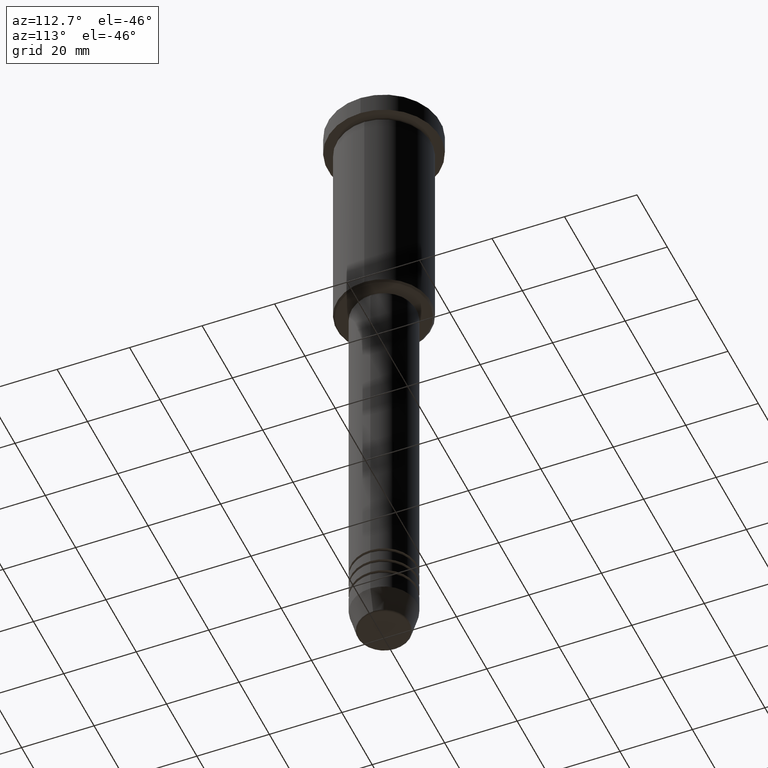
[diagram: clean part render]
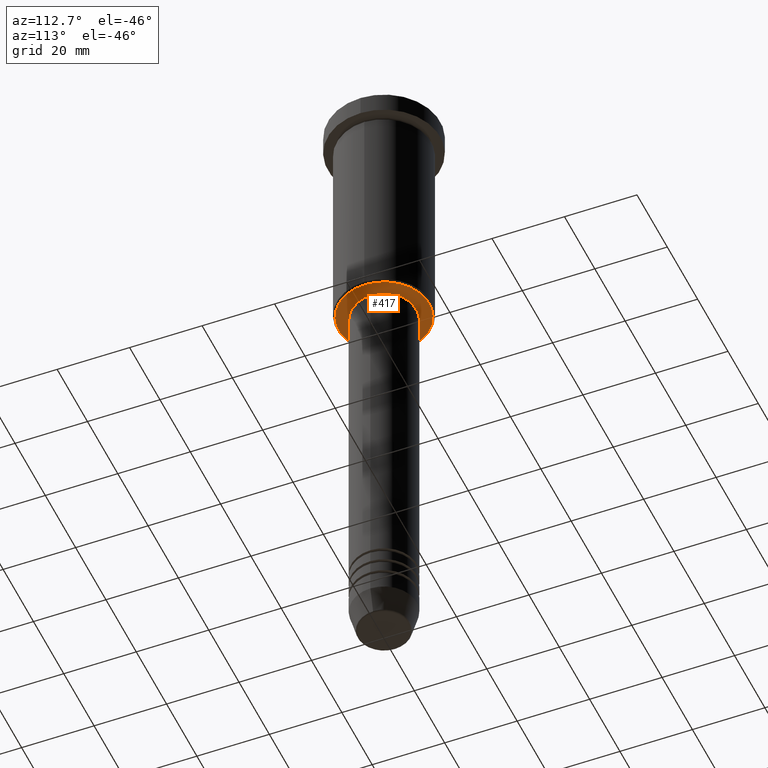
[diagram: same view with one face highlighted and labeled with its STEP entity id]
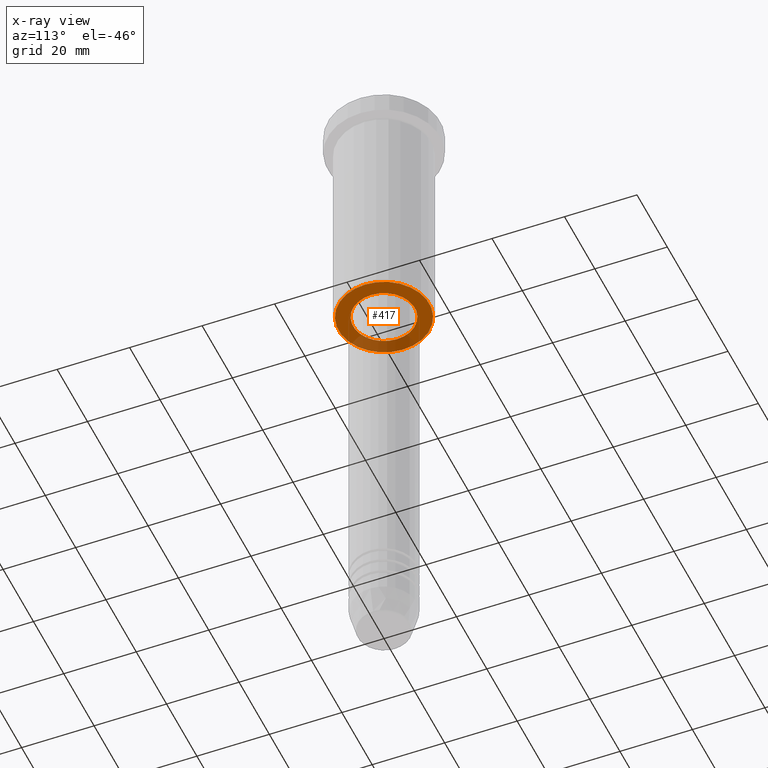
[diagram: x-ray of the same camera — body ghosted, the highlighted face saturated]
A machine part, auxiliary view. The second image highlights one B-rep face of the part: STEP entity #417.
The next image is the same camera in x-ray: the body ghosted, the highlighted face saturated — about 23% of this face is hidden behind the body in this view.
In plain terms, the highlighted planar face has unit normal (0, 0, -1).
Its self-contained STEP definition (entity closure, byte-faithful):
#22 = CARTESIAN_POINT ( 'NONE',  ( 12.50000000000002487, 0.000000000000000000, -65.99999999999997158 ) ) ;
#123 = AXIS2_PLACEMENT_3D ( 'NONE', #1075, #280, #1171 ) ;
#128 = AXIS2_PLACEMENT_3D ( 'NONE', #860, #871, #1146 ) ;
#149 = VERTEX_POINT ( 'NONE', #22 ) ;
#150 = EDGE_CURVE ( 'NONE', #149, #384, #911, .T. ) ;
#183 = PLANE ( 'NONE',  #123 ) ;
#280 = DIRECTION ( 'NONE',  ( 0.000000000000000000, 0.000000000000000000, -1.000000000000000000 ) ) ;
#299 = DIRECTION ( 'NONE',  ( -1.000000000000000000, 0.000000000000000000, 0.000000000000000000 ) ) ;
#312 = ORIENTED_EDGE ( 'NONE', *, *, #973, .T. ) ;
#381 = DIRECTION ( 'NONE',  ( 0.000000000000000000, 0.000000000000000000, -1.000000000000000000 ) ) ;
#382 = EDGE_LOOP ( 'NONE', ( #312, #568 ) ) ;
#384 = VERTEX_POINT ( 'NONE', #694 ) ;
#386 = CARTESIAN_POINT ( 'NONE',  ( -8.500000000000000000, 1.040949779275250140E-15, -65.99999999999997158 ) ) ;
#407 = VERTEX_POINT ( 'NONE', #448 ) ;
#417 = ADVANCED_FACE ( 'NONE', ( #810, #985 ), #183, .T. ) ;
#442 = DIRECTION ( 'NONE',  ( 1.000000000000000000, 0.000000000000000000, 0.000000000000000000 ) ) ;
#448 = CARTESIAN_POINT ( 'NONE',  ( 8.500000000000000000, 0.000000000000000000, -65.99999999999997158 ) ) ;
#561 = CARTESIAN_POINT ( 'NONE',  ( 0.000000000000000000, 0.000000000000000000, -65.99999999999997158 ) ) ;
#568 = ORIENTED_EDGE ( 'NONE', *, *, #1151, .T. ) ;
#586 = VERTEX_POINT ( 'NONE', #386 ) ;
#660 = DIRECTION ( 'NONE',  ( 0.000000000000000000, 0.000000000000000000, -1.000000000000000000 ) ) ;
#666 = CIRCLE ( 'NONE', #1019, 8.500000000000000000 ) ;
#694 = CARTESIAN_POINT ( 'NONE',  ( -12.50000000000002487, 1.561424668912876886E-15, -65.99999999999997158 ) ) ;
#754 = AXIS2_PLACEMENT_3D ( 'NONE', #1112, #660, #926 ) ;
#771 = CIRCLE ( 'NONE', #754, 12.50000000000002487 ) ;
#805 = DIRECTION ( 'NONE',  ( -0.000000000000000000, -0.000000000000000000, 1.000000000000000000 ) ) ;
#810 = FACE_OUTER_BOUND ( 'NONE', #988, .T. ) ;
#819 = ORIENTED_EDGE ( 'NONE', *, *, #150, .T. ) ;
#844 = ORIENTED_EDGE ( 'NONE', *, *, #961, .T. ) ;
#860 = CARTESIAN_POINT ( 'NONE',  ( 0.000000000000000000, 0.000000000000000000, -65.99999999999997158 ) ) ;
#871 = DIRECTION ( 'NONE',  ( -0.000000000000000000, -0.000000000000000000, 1.000000000000000000 ) ) ;
#892 = CARTESIAN_POINT ( 'NONE',  ( 0.000000000000000000, 0.000000000000000000, -65.99999999999997158 ) ) ;
#911 = CIRCLE ( 'NONE', #967, 12.50000000000002487 ) ;
#926 = DIRECTION ( 'NONE',  ( -1.000000000000000000, 0.000000000000000000, 0.000000000000000000 ) ) ;
#961 = EDGE_CURVE ( 'NONE', #384, #149, #771, .T. ) ;
#967 = AXIS2_PLACEMENT_3D ( 'NONE', #561, #381, #299 ) ;
#973 = EDGE_CURVE ( 'NONE', #407, #586, #1078, .T. ) ;
#985 = FACE_BOUND ( 'NONE', #382, .T. ) ;
#988 = EDGE_LOOP ( 'NONE', ( #819, #844 ) ) ;
#1019 = AXIS2_PLACEMENT_3D ( 'NONE', #892, #805, #442 ) ;
#1075 = CARTESIAN_POINT ( 'NONE',  ( 0.000000000000000000, 13.00000000000000000, -65.99999999999997158 ) ) ;
#1078 = CIRCLE ( 'NONE', #128, 8.500000000000000000 ) ;
#1112 = CARTESIAN_POINT ( 'NONE',  ( 0.000000000000000000, 0.000000000000000000, -65.99999999999997158 ) ) ;
#1146 = DIRECTION ( 'NONE',  ( 1.000000000000000000, 0.000000000000000000, 0.000000000000000000 ) ) ;
#1151 = EDGE_CURVE ( 'NONE', #586, #407, #666, .T. ) ;
#1171 = DIRECTION ( 'NONE',  ( -1.000000000000000000, 0.000000000000000000, -0.000000000000000000 ) ) ;